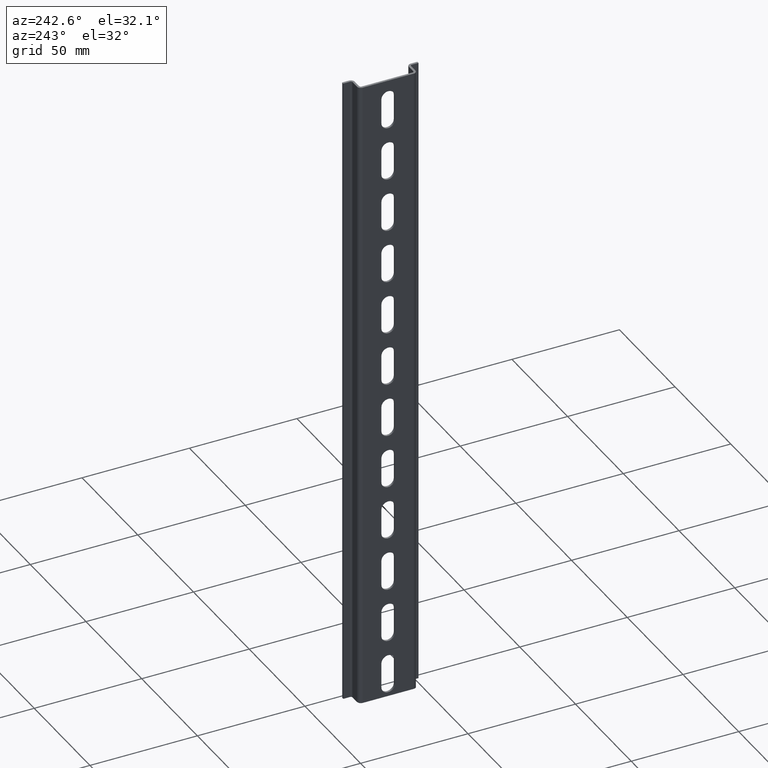
[diagram: clean part render]
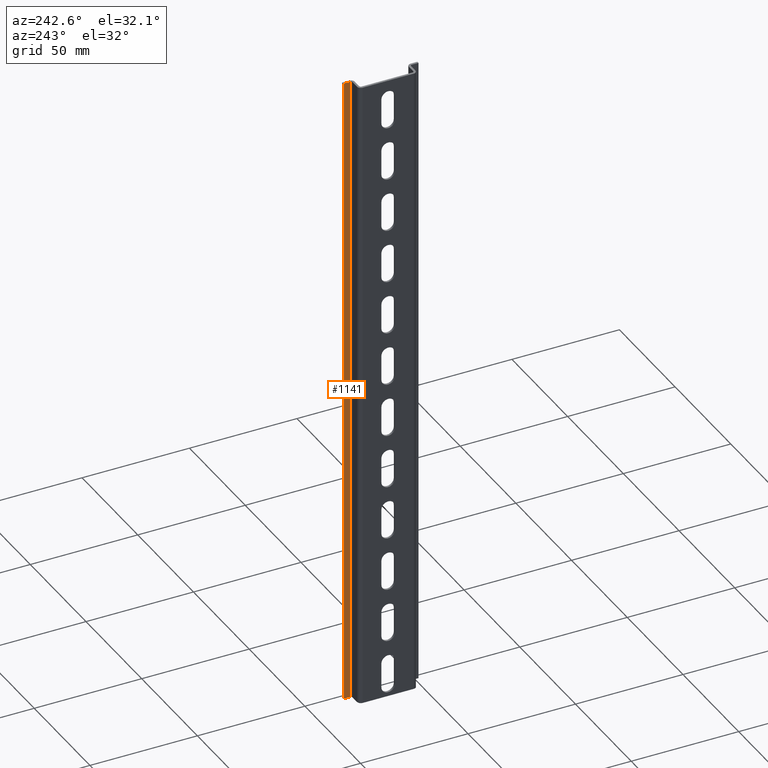
[diagram: same view with one face highlighted and labeled with its STEP entity id]
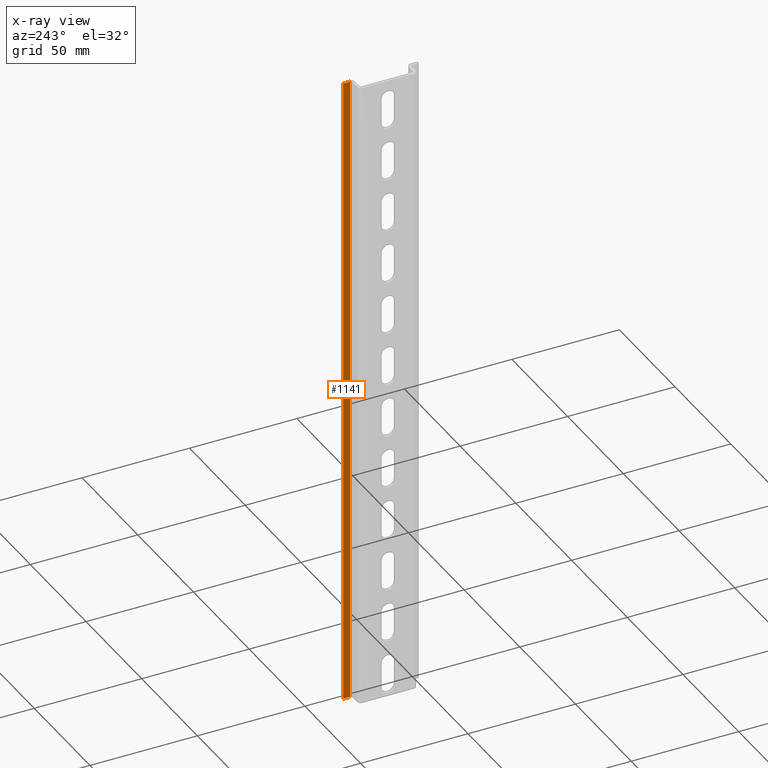
[diagram: x-ray of the same camera — body ghosted, the highlighted face saturated]
A machine part, auxiliary view. The second image highlights one B-rep face of the part: STEP entity #1141.
The next image is the same camera in x-ray: the body ghosted, the highlighted face saturated — about 0% of this face is hidden behind the body in this view.
In plain terms, the highlighted planar face has unit normal (1, -0, 0).
Its self-contained STEP definition (entity closure, byte-faithful):
#82 = VERTEX_POINT ( 'NONE', #231 ) ;
#100 = VERTEX_POINT ( 'NONE', #244 ) ;
#120 = VERTEX_POINT ( 'NONE', #319 ) ;
#121 = VERTEX_POINT ( 'NONE', #260 ) ;
#231 = CARTESIAN_POINT ( 'NONE',  ( 1391.325919215657900, 483.5188036583252300, 0.0000000000000000000 ) ) ;
#244 = CARTESIAN_POINT ( 'NONE',  ( 1391.325919215657900, 483.5188036583252300, 300.0000000000000000 ) ) ;
#260 = CARTESIAN_POINT ( 'NONE',  ( 1391.325919215657700, 486.6188036583252500, 300.0000000000000000 ) ) ;
#319 = CARTESIAN_POINT ( 'NONE',  ( 1391.325919215657700, 486.6188036583252500, 0.0000000000000000000 ) ) ;
#373 = LINE ( 'NONE', #406, #2776 ) ;
#406 = CARTESIAN_POINT ( 'NONE',  ( 1391.325919215657900, 483.5188036583252300, 300.0000000000000000 ) ) ;
#407 = DIRECTION ( 'NONE',  ( 0.0000000000000000000, 0.0000000000000000000, -1.000000000000000000 ) ) ;
#436 = EDGE_LOOP ( 'NONE', ( #825, #821, #824, #827 ) ) ;
#821 = ORIENTED_EDGE ( 'NONE', *, *, #1039, .F. ) ;
#824 = ORIENTED_EDGE ( 'NONE', *, *, #1308, .F. ) ;
#825 = ORIENTED_EDGE ( 'NONE', *, *, #981, .F. ) ;
#827 = ORIENTED_EDGE ( 'NONE', *, *, #986, .T. ) ;
#981 = EDGE_CURVE ( 'NONE', #100, #82, #373, .T. ) ;
#986 = EDGE_CURVE ( 'NONE', #120, #82, #2207, .T. ) ;
#1039 = EDGE_CURVE ( 'NONE', #121, #100, #2327, .T. ) ;
#1141 = ADVANCED_FACE ( 'NONE', ( #1747 ), #1737, .F. ) ;
#1308 = EDGE_CURVE ( 'NONE', #120, #121, #1902, .T. ) ;
#1734 = DIRECTION ( 'NONE',  ( 1.000000000000000000, -0.0000000000000000000, 0.0000000000000000000 ) ) ;
#1737 = PLANE ( 'NONE',  #2518 ) ;
#1747 = FACE_OUTER_BOUND ( 'NONE', #436, .T. ) ;
#1759 = DIRECTION ( 'NONE',  ( 0.0000000000000000000, 0.0000000000000000000, -1.000000000000000000 ) ) ;
#1764 = CARTESIAN_POINT ( 'NONE',  ( 1391.325919215657900, 441.1357542965276400, 300.0000000000000000 ) ) ;
#1902 = LINE ( 'NONE', #1917, #2549 ) ;
#1917 = CARTESIAN_POINT ( 'NONE',  ( 1391.325919215657900, 486.6188036583252500, 300.0000000000000000 ) ) ;
#1919 = DIRECTION ( 'NONE',  ( -0.0000000000000000000, -0.0000000000000000000, 1.000000000000000000 ) ) ;
#2198 = CARTESIAN_POINT ( 'NONE',  ( 1391.325919215657900, 441.1357542965276400, 0.0000000000000000000 ) ) ;
#2204 = DIRECTION ( 'NONE',  ( 0.0000000000000000000, -1.000000000000000000, -0.0000000000000000000 ) ) ;
#2207 = LINE ( 'NONE', #2198, #2778 ) ;
#2327 = LINE ( 'NONE', #2334, #2822 ) ;
#2334 = CARTESIAN_POINT ( 'NONE',  ( 1391.325919215657900, 441.1357542965276400, 300.0000000000000000 ) ) ;
#2355 = DIRECTION ( 'NONE',  ( 0.0000000000000000000, -1.000000000000000000, -0.0000000000000000000 ) ) ;
#2518 = AXIS2_PLACEMENT_3D ( 'NONE', #1764, #1734, #1759 ) ;
#2549 = VECTOR ( 'NONE', #1919, 1000.000000000000000 ) ;
#2776 = VECTOR ( 'NONE', #407, 1000.000000000000000 ) ;
#2778 = VECTOR ( 'NONE', #2204, 1000.000000000000000 ) ;
#2822 = VECTOR ( 'NONE', #2355, 1000.000000000000000 ) ;